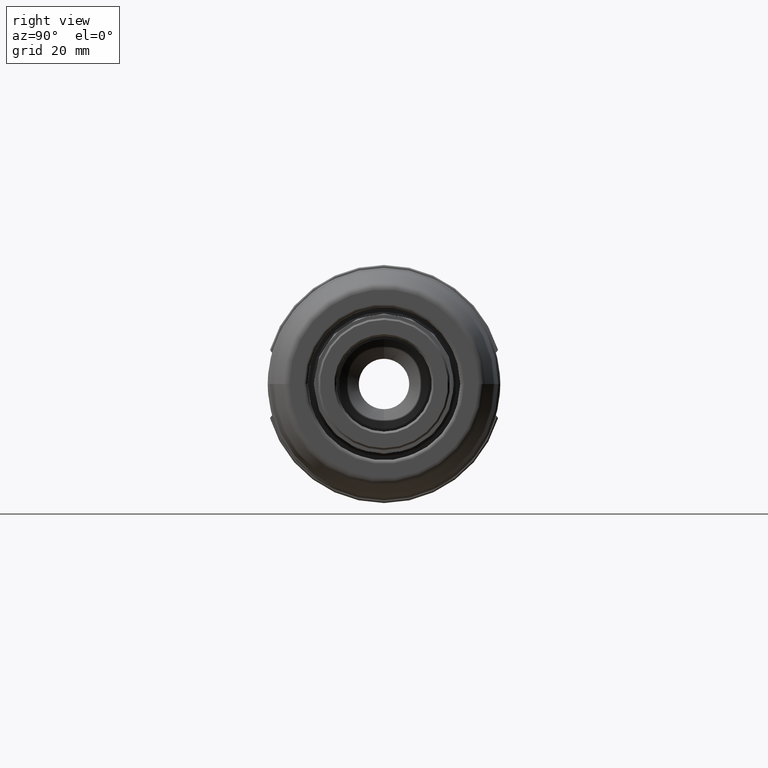
[diagram: clean part render]
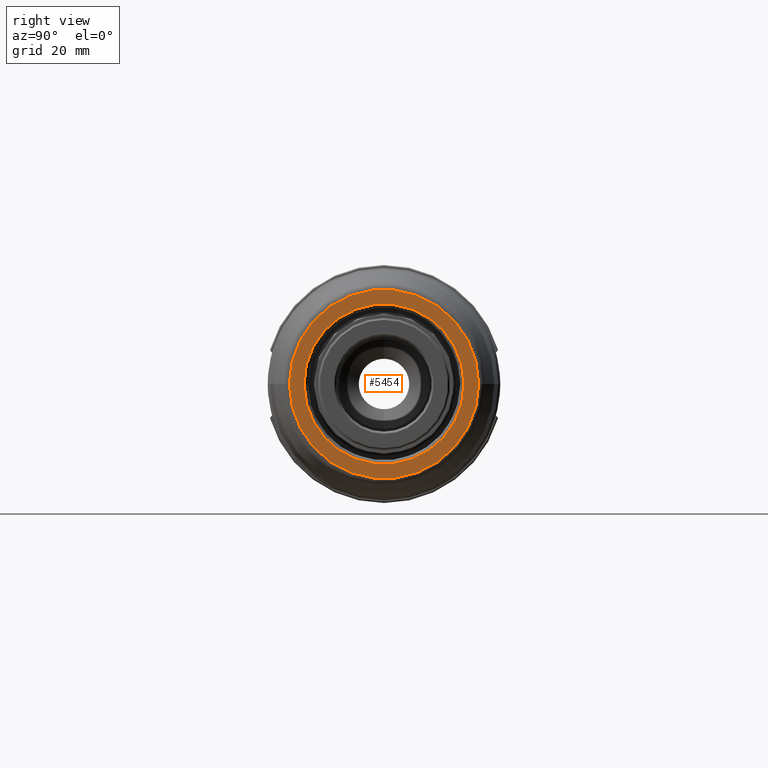
[diagram: same view with one face highlighted and labeled with its STEP entity id]
A machine part, right view. The second image highlights one B-rep face of the part: STEP entity #5454.
In plain terms, the highlighted planar face has unit normal (1, 0, 0).
Its self-contained STEP definition (entity closure, byte-faithful):
#3964=CARTESIAN_POINT('',(4.85E1,0.E0,0.E0));
#3965=DIRECTION('',(-1.E0,0.E0,0.E0));
#3966=DIRECTION('',(0.E0,1.E0,0.E0));
#3967=AXIS2_PLACEMENT_3D('',#3964,#3965,#3966);
#3969=CARTESIAN_POINT('',(4.85E1,0.E0,0.E0));
#3970=DIRECTION('',(1.E0,0.E0,0.E0));
#3971=DIRECTION('',(0.E0,1.E0,0.E0));
#3972=AXIS2_PLACEMENT_3D('',#3969,#3970,#3971);
#3974=CARTESIAN_POINT('',(4.85E1,0.E0,0.E0));
#3975=DIRECTION('',(1.E0,0.E0,0.E0));
#3976=DIRECTION('',(0.E0,1.E0,0.E0));
#3977=AXIS2_PLACEMENT_3D('',#3974,#3975,#3976);
#3989=CARTESIAN_POINT('',(4.85E1,0.E0,0.E0));
#3990=DIRECTION('',(-1.E0,0.E0,0.E0));
#3991=DIRECTION('',(0.E0,1.E0,0.E0));
#3992=AXIS2_PLACEMENT_3D('',#3989,#3990,#3991);
#5034=CARTESIAN_POINT('',(4.85E1,2.134275814651E1,0.E0));
#5035=VERTEX_POINT('',#5034);
#5036=CARTESIAN_POINT('',(4.85E1,2.522585947839E1,0.E0));
#5038=VERTEX_POINT('',#5036);
#5070=CARTESIAN_POINT('',(4.85E1,-2.134275814651E1,0.E0));
#5071=VERTEX_POINT('',#5070);
#5072=CARTESIAN_POINT('',(4.85E1,-2.522585947839E1,0.E0));
#5074=VERTEX_POINT('',#5072);
#5439=CARTESIAN_POINT('',(4.85E1,0.E0,0.E0));
#5440=DIRECTION('',(1.E0,0.E0,0.E0));
#5441=DIRECTION('',(0.E0,-1.E0,0.E0));
#5442=AXIS2_PLACEMENT_3D('',#5439,#5440,#5441);
#5443=PLANE('',#5442);
#5445=ORIENTED_EDGE('',*,*,#5444,.F.);
#5447=ORIENTED_EDGE('',*,*,#5446,.T.);
#5448=EDGE_LOOP('',(#5445,#5447));
#5449=FACE_OUTER_BOUND('',#5448,.F.);
#5450=ORIENTED_EDGE('',*,*,#5432,.F.);
#5451=ORIENTED_EDGE('',*,*,#5421,.T.);
#5452=EDGE_LOOP('',(#5450,#5451));
#5453=FACE_BOUND('',#5452,.F.);
#5454=ADVANCED_FACE('',(#5449,#5453),#5443,.T.);
#3968=CIRCLE('',#3967,2.134275814651E1);
#3973=CIRCLE('',#3972,2.134275814651E1);
#3978=CIRCLE('',#3977,2.522585947839E1);
#3993=CIRCLE('',#3992,2.522585947839E1);
#5421=EDGE_CURVE('',#5035,#5071,#3973,.T.);
#5432=EDGE_CURVE('',#5035,#5071,#3968,.T.);
#5444=EDGE_CURVE('',#5038,#5074,#3978,.T.);
#5446=EDGE_CURVE('',#5038,#5074,#3993,.T.);